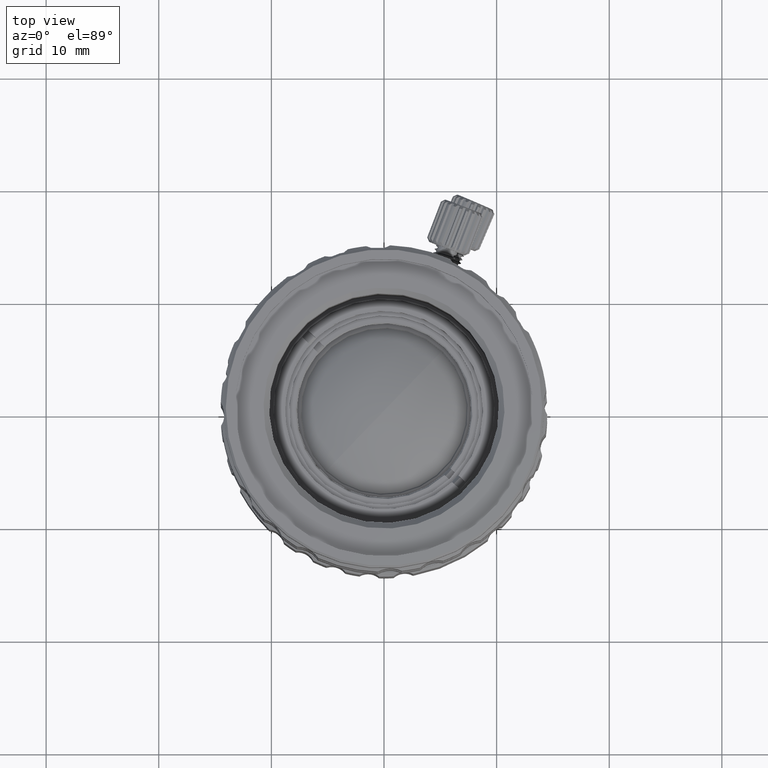
[diagram: clean part render]
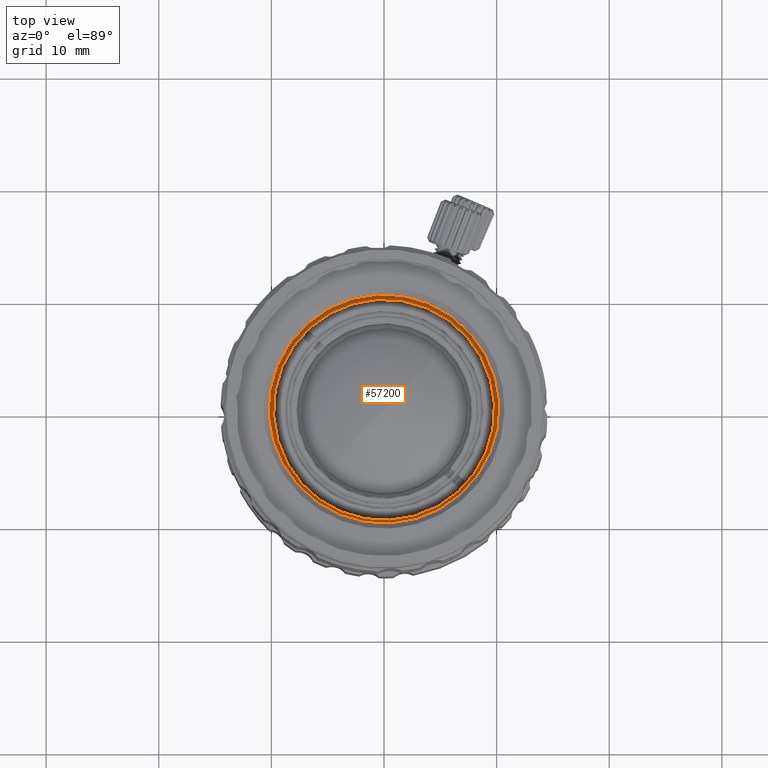
[diagram: same view with one face highlighted and labeled with its STEP entity id]
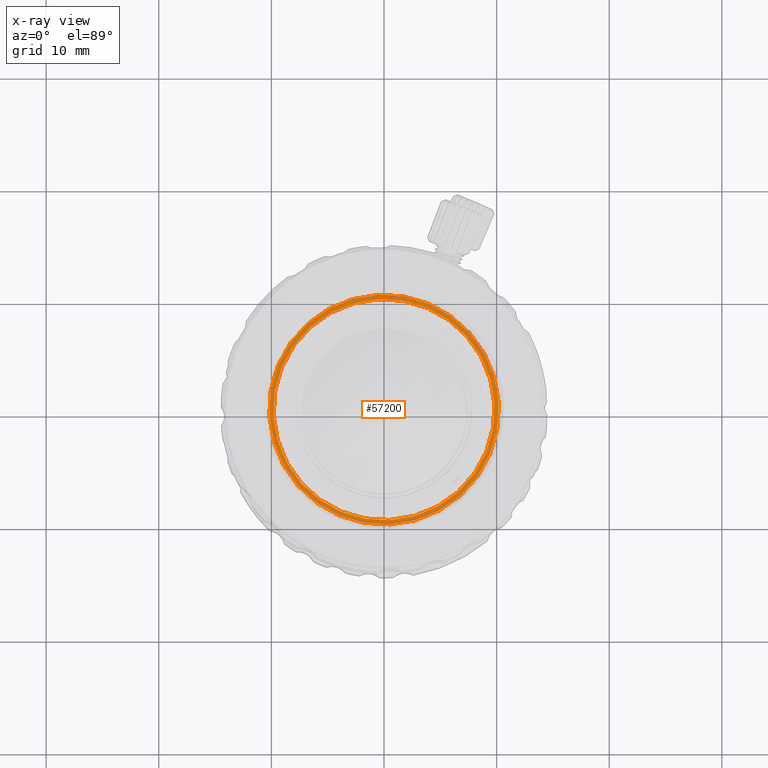
[diagram: x-ray of the same camera — body ghosted, the highlighted face saturated]
A machine part, top view. The second image highlights one B-rep face of the part: STEP entity #57200.
The next image is the same camera in x-ray: the body ghosted, the highlighted face saturated — about 12% of this face is hidden behind the body in this view.
In plain terms, the highlighted planar face has unit normal (0, 0, -1).
Its self-contained STEP definition (entity closure, byte-faithful):
#1415 = CIRCLE ( 'NONE', #22210, 9.816173116960005274 ) ;
#4391 = DIRECTION ( 'NONE',  ( -0.9612616960569885238, -0.2756373554031488760, 0.000000000000000000 ) ) ;
#8907 = VERTEX_POINT ( 'NONE', #23925 ) ;
#10352 = DIRECTION ( 'NONE',  ( 0.000000000000000000, 0.000000000000000000, -1.000000000000000000 ) ) ;
#12625 = CARTESIAN_POINT ( 'NONE',  ( 0.000000000000000000, 0.000000000000000000, 34.36993545905000502 ) ) ;
#12698 = DIRECTION ( 'NONE',  ( 0.2756373558170111537, -0.9612616959383155635, 0.000000000000000000 ) ) ;
#12710 = CARTESIAN_POINT ( 'NONE',  ( 2.811501029333512314, -9.804869298570812575, 34.36993545905000502 ) ) ;
#13295 = CIRCLE ( 'NONE', #61321, 9.816173116960005274 ) ;
#13318 = AXIS2_PLACEMENT_3D ( 'NONE', #47708, #46510, #71671 ) ;
#14520 = VERTEX_POINT ( 'NONE', #71258 ) ;
#17753 = EDGE_LOOP ( 'NONE', ( #38269, #78618 ) ) ;
#19161 = EDGE_LOOP ( 'NONE', ( #32018, #37135 ) ) ;
#21015 = AXIS2_PLACEMENT_3D ( 'NONE', #43630, #68390, #12698 ) ;
#22210 = AXIS2_PLACEMENT_3D ( 'NONE', #12625, #73220, #30935 ) ;
#23357 = PLANE ( 'NONE',  #53734 ) ;
#23925 = CARTESIAN_POINT ( 'NONE',  ( 9.435911218033069758, 2.705704002200882474, 34.36993545905000502 ) ) ;
#29470 = FACE_BOUND ( 'NONE', #17753, .T. ) ;
#30935 = DIRECTION ( 'NONE',  ( -0.9612616960569885238, -0.2756373554031488760, 0.000000000000000000 ) ) ;
#32018 = ORIENTED_EDGE ( 'NONE', *, *, #63512, .F. ) ;
#33619 = EDGE_CURVE ( 'NONE', #8907, #14520, #1415, .T. ) ;
#35178 = DIRECTION ( 'NONE',  ( 0.000000000000000000, -1.000000000000000000, 0.000000000000000000 ) ) ;
#37135 = ORIENTED_EDGE ( 'NONE', *, *, #74007, .F. ) ;
#37901 = CIRCLE ( 'NONE', #21015, 10.19999999999999396 ) ;
#38269 = ORIENTED_EDGE ( 'NONE', *, *, #33619, .F. ) ;
#43499 = VERTEX_POINT ( 'NONE', #67440 ) ;
#43630 = CARTESIAN_POINT ( 'NONE',  ( 0.000000000000000000, 0.000000000000000000, 34.36993545905000502 ) ) ;
#46510 = DIRECTION ( 'NONE',  ( 0.000000000000000000, 0.000000000000000000, -1.000000000000000000 ) ) ;
#47708 = CARTESIAN_POINT ( 'NONE',  ( 0.000000000000000000, 0.000000000000000000, 34.36993545905000502 ) ) ;
#53734 = AXIS2_PLACEMENT_3D ( 'NONE', #66831, #10352, #35178 ) ;
#56079 = VERTEX_POINT ( 'NONE', #12710 ) ;
#57200 = ADVANCED_FACE ( 'NONE', ( #59943, #29470 ), #23357, .F. ) ;
#59943 = FACE_OUTER_BOUND ( 'NONE', #19161, .T. ) ;
#61321 = AXIS2_PLACEMENT_3D ( 'NONE', #78774, #72662, #4391 ) ;
#63512 = EDGE_CURVE ( 'NONE', #56079, #43499, #67843, .T. ) ;
#66831 = CARTESIAN_POINT ( 'NONE',  ( 2.811501029333510093, -9.804869298570569214, 34.36993545905000502 ) ) ;
#67440 = CARTESIAN_POINT ( 'NONE',  ( -2.811501029333512314, 9.804869298570817904, 34.36993545905000502 ) ) ;
#67843 = CIRCLE ( 'NONE', #13318, 10.19999999999999396 ) ;
#68390 = DIRECTION ( 'NONE',  ( 0.000000000000000000, 0.000000000000000000, -1.000000000000000000 ) ) ;
#71258 = CARTESIAN_POINT ( 'NONE',  ( -9.435911218033069758, -2.705704002200881586, 34.36993545905000502 ) ) ;
#71671 = DIRECTION ( 'NONE',  ( 0.2756373558170111537, -0.9612616959383155635, 0.000000000000000000 ) ) ;
#72662 = DIRECTION ( 'NONE',  ( 0.000000000000000000, 0.000000000000000000, 1.000000000000000000 ) ) ;
#73220 = DIRECTION ( 'NONE',  ( 0.000000000000000000, 0.000000000000000000, 1.000000000000000000 ) ) ;
#74007 = EDGE_CURVE ( 'NONE', #43499, #56079, #37901, .T. ) ;
#75815 = EDGE_CURVE ( 'NONE', #14520, #8907, #13295, .T. ) ;
#78618 = ORIENTED_EDGE ( 'NONE', *, *, #75815, .F. ) ;
#78774 = CARTESIAN_POINT ( 'NONE',  ( 0.000000000000000000, 0.000000000000000000, 34.36993545905000502 ) ) ;